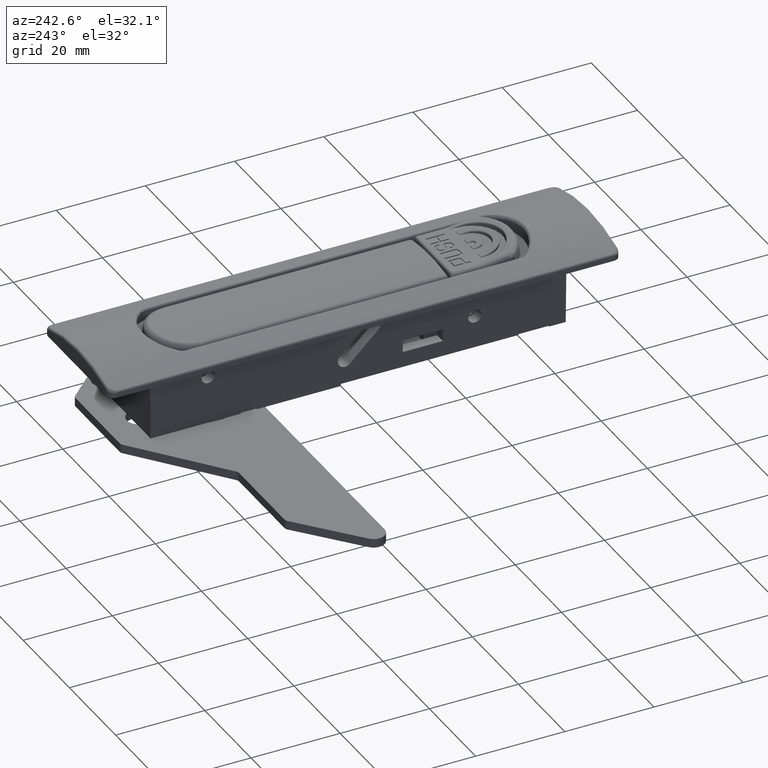
[diagram: clean part render]
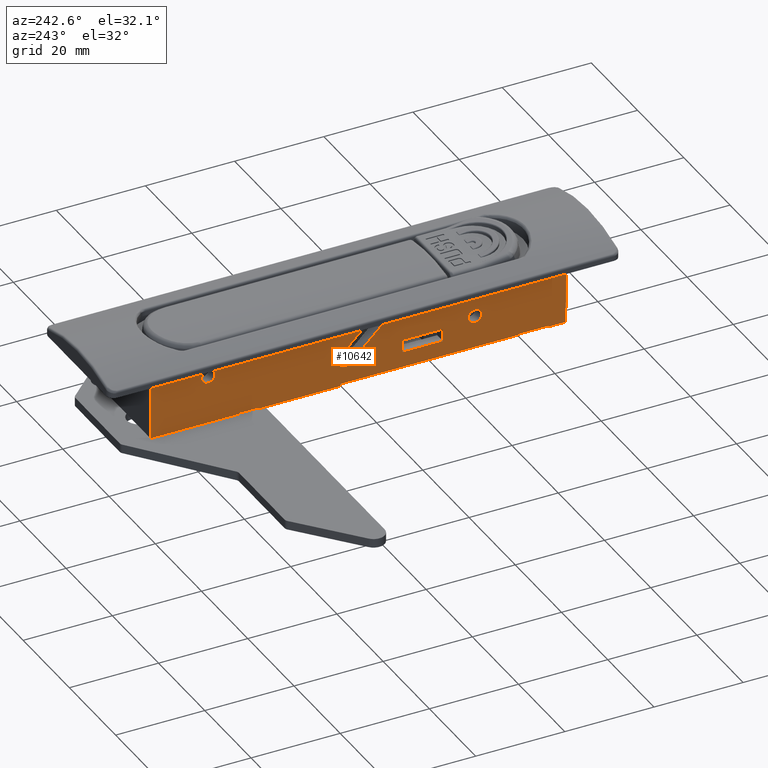
[diagram: same view with one face highlighted and labeled with its STEP entity id]
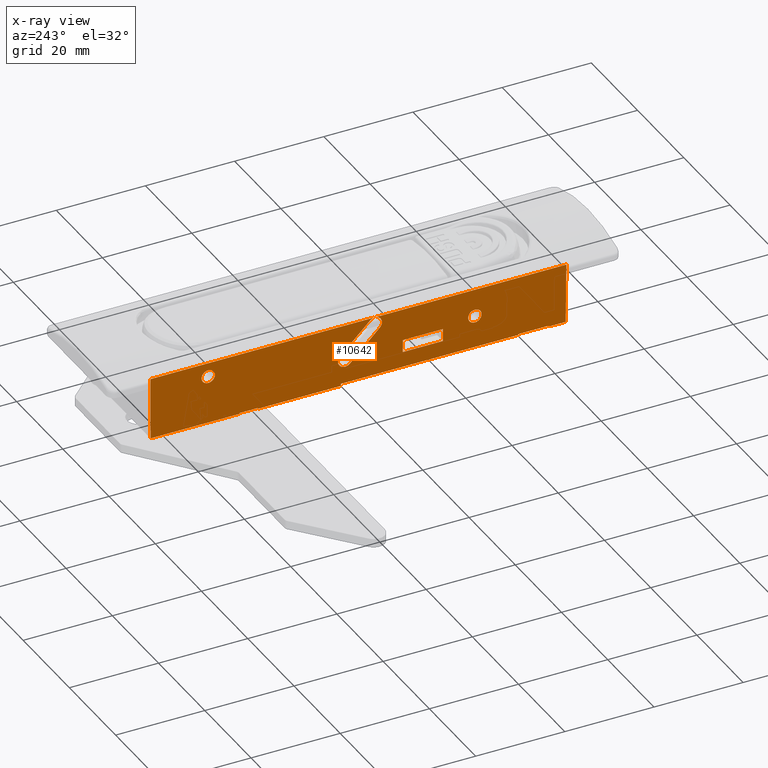
[diagram: x-ray of the same camera — body ghosted, the highlighted face saturated]
A machine part, auxiliary view. The second image highlights one B-rep face of the part: STEP entity #10642.
The next image is the same camera in x-ray: the body ghosted, the highlighted face saturated — about 0% of this face is hidden behind the body in this view.
In plain terms, the highlighted planar face has unit normal (-1, 0, -0.0071).
Its self-contained STEP definition (entity closure, byte-faithful):
#409=ELLIPSE('',#11368,0.200005101975738,0.199999999999997);
#410=ELLIPSE('',#11372,0.20000510197574,0.199999999999999);
#411=ELLIPSE('',#11376,0.20000510197574,0.199999999999999);
#412=ELLIPSE('',#11378,1.50003826481806,1.5);
#413=ELLIPSE('',#11382,1.60004081580508,1.59999999999915);
#414=ELLIPSE('',#11386,1.60004081580089,1.59999999999496);
#415=ELLIPSE('',#11398,1.50003826481806,1.5);
#416=ELLIPSE('',#11402,0.200005101975737,0.199999999999996);
#417=ELLIPSE('',#11405,350.008928457546,2.5);
#420=ELLIPSE('',#11410,350.008928457546,2.5);
#756=FACE_BOUND('',#1570,.T.);
#757=FACE_BOUND('',#1571,.T.);
#758=FACE_BOUND('',#1572,.T.);
#759=FACE_BOUND('',#1573,.T.);
#899=FACE_OUTER_BOUND('',#1569,.T.);
#1569=EDGE_LOOP('',(#7564,#7565,#7566,#7567,#7568,#7569,#7570,#7571,#7572,
#7573,#7574,#7575,#7576,#7577,#7578,#7579,#7580,#7581,#7582,#7583,#7584));
#1570=EDGE_LOOP('',(#7585));
#1571=EDGE_LOOP('',(#7586));
#1572=EDGE_LOOP('',(#7587,#7588,#7589,#7590));
#1573=EDGE_LOOP('',(#7591,#7592,#7593,#7594));
#2665=LINE('',#15634,#3521);
#2687=LINE('',#15722,#3543);
#2688=LINE('',#15730,#3544);
#2689=LINE('',#15732,#3545);
#2703=LINE('',#15830,#3559);
#2718=LINE('',#15868,#3574);
#2743=LINE('',#16033,#3599);
#2837=LINE('',#16916,#3693);
#2840=LINE('',#16929,#3696);
#2845=LINE('',#16942,#3701);
#2849=LINE('',#16954,#3705);
#2851=LINE('',#16969,#3707);
#2856=LINE('',#16983,#3712);
#2859=LINE('',#16993,#3715);
#2863=LINE('',#17001,#3719);
#2866=LINE('',#17007,#3722);
#2869=LINE('',#17012,#3725);
#2875=LINE('',#17046,#3731);
#2882=LINE('',#17062,#3738);
#2885=LINE('',#17066,#3741);
#2889=LINE('',#17072,#3745);
#3521=VECTOR('',#12406,39.594114768528);
#3543=VECTOR('',#12480,18.478777103522);
#3544=VECTOR('',#12487,4.0787771040174);
#3545=VECTOR('',#12490,15.8962962957966);
#3559=VECTOR('',#12550,14.0007412110565);
#3574=VECTOR('',#12575,13.5007147392056);
#3599=VECTOR('',#12626,67.8000000003736);
#3693=VECTOR('',#12888,4.14051311294211);
#3696=VECTOR('',#12899,0.0633476568084421);
#3701=VECTOR('',#12912,6.507461438189);
#3705=VECTOR('',#12924,0.0633476567013543);
#3707=VECTOR('',#12940,9.30011621326186);
#3712=VECTOR('',#12953,9.30011621329525);
#3715=VECTOR('',#12964,2.80007142764877);
#3719=VECTOR('',#12970,9.);
#3722=VECTOR('',#12975,2.80007142764877);
#3725=VECTOR('',#12980,9.);
#3731=VECTOR('',#13026,0.509914458612365);
#3738=VECTOR('',#13049,9.3499999996269);
#3741=VECTOR('',#13054,3.59411476860998);
#3745=VECTOR('',#13060,16.149999999988);
#4381=VERTEX_POINT('',#15631);
#4382=VERTEX_POINT('',#15633);
#4396=VERTEX_POINT('',#15668);
#4421=VERTEX_POINT('',#15719);
#4422=VERTEX_POINT('',#15721);
#4425=VERTEX_POINT('',#15727);
#4426=VERTEX_POINT('',#15729);
#4459=VERTEX_POINT('',#15829);
#4476=VERTEX_POINT('',#15865);
#4477=VERTEX_POINT('',#15867);
#4515=VERTEX_POINT('',#16030);
#4516=VERTEX_POINT('',#16032);
#4638=VERTEX_POINT('',#16914);
#4639=VERTEX_POINT('',#16915);
#4644=VERTEX_POINT('',#16926);
#4645=VERTEX_POINT('',#16928);
#4647=VERTEX_POINT('',#16934);
#4649=VERTEX_POINT('',#16940);
#4651=VERTEX_POINT('',#16946);
#4653=VERTEX_POINT('',#16952);
#4655=VERTEX_POINT('',#16958);
#4656=VERTEX_POINT('',#16962);
#4658=VERTEX_POINT('',#16967);
#4659=VERTEX_POINT('',#16968);
#4662=VERTEX_POINT('',#16976);
#4664=VERTEX_POINT('',#16982);
#4666=VERTEX_POINT('',#16991);
#4667=VERTEX_POINT('',#16992);
#4670=VERTEX_POINT('',#17000);
#4672=VERTEX_POINT('',#17006);
#4680=VERTEX_POINT('',#17029);
#5419=EDGE_CURVE('',#4381,#4382,#2665,.T.);
#5460=EDGE_CURVE('',#4421,#4422,#2687,.T.);
#5464=EDGE_CURVE('',#4425,#4426,#2688,.T.);
#5466=EDGE_CURVE('',#4426,#4396,#2689,.T.);
#5501=EDGE_CURVE('',#4396,#4459,#2703,.T.);
#5520=EDGE_CURVE('',#4476,#4477,#2718,.T.);
#5562=EDGE_CURVE('',#4515,#4516,#2743,.T.);
#5724=EDGE_CURVE('',#4638,#4639,#2837,.T.);
#5730=EDGE_CURVE('',#4644,#4645,#2840,.T.);
#5734=EDGE_CURVE('',#4647,#4644,#409,.T.);
#5737=EDGE_CURVE('',#4649,#4647,#2845,.T.);
#5740=EDGE_CURVE('',#4651,#4649,#410,.T.);
#5743=EDGE_CURVE('',#4653,#4651,#2849,.T.);
#5746=EDGE_CURVE('',#4655,#4653,#411,.T.);
#5747=EDGE_CURVE('',#4656,#4656,#412,.T.);
#5749=EDGE_CURVE('',#4658,#4659,#2851,.T.);
#5753=EDGE_CURVE('',#4662,#4658,#413,.T.);
#5756=EDGE_CURVE('',#4664,#4662,#2856,.T.);
#5759=EDGE_CURVE('',#4659,#4664,#414,.T.);
#5761=EDGE_CURVE('',#4666,#4667,#2859,.T.);
#5765=EDGE_CURVE('',#4670,#4666,#2863,.T.);
#5768=EDGE_CURVE('',#4672,#4670,#2866,.T.);
#5771=EDGE_CURVE('',#4667,#4672,#2869,.T.);
#5779=EDGE_CURVE('',#4680,#4680,#415,.T.);
#5782=EDGE_CURVE('',#4645,#4381,#416,.T.);
#5783=EDGE_CURVE('',#4425,#4639,#417,.T.);
#5786=EDGE_CURVE('',#4638,#4422,#420,.T.);
#5788=EDGE_CURVE('',#4382,#4421,#2875,.T.);
#5795=EDGE_CURVE('',#4459,#4515,#2882,.T.);
#5798=EDGE_CURVE('',#4477,#4655,#2885,.T.);
#5802=EDGE_CURVE('',#4516,#4476,#2889,.T.);
#7564=ORIENTED_EDGE('',*,*,#5464,.F.);
#7565=ORIENTED_EDGE('',*,*,#5783,.T.);
#7566=ORIENTED_EDGE('',*,*,#5724,.F.);
#7567=ORIENTED_EDGE('',*,*,#5786,.T.);
#7568=ORIENTED_EDGE('',*,*,#5460,.F.);
#7569=ORIENTED_EDGE('',*,*,#5788,.F.);
#7570=ORIENTED_EDGE('',*,*,#5419,.F.);
#7571=ORIENTED_EDGE('',*,*,#5782,.F.);
#7572=ORIENTED_EDGE('',*,*,#5730,.F.);
#7573=ORIENTED_EDGE('',*,*,#5734,.F.);
#7574=ORIENTED_EDGE('',*,*,#5737,.F.);
#7575=ORIENTED_EDGE('',*,*,#5740,.F.);
#7576=ORIENTED_EDGE('',*,*,#5743,.F.);
#7577=ORIENTED_EDGE('',*,*,#5746,.F.);
#7578=ORIENTED_EDGE('',*,*,#5798,.F.);
#7579=ORIENTED_EDGE('',*,*,#5520,.F.);
#7580=ORIENTED_EDGE('',*,*,#5802,.F.);
#7581=ORIENTED_EDGE('',*,*,#5562,.F.);
#7582=ORIENTED_EDGE('',*,*,#5795,.F.);
#7583=ORIENTED_EDGE('',*,*,#5501,.F.);
#7584=ORIENTED_EDGE('',*,*,#5466,.F.);
#7585=ORIENTED_EDGE('',*,*,#5779,.T.);
#7586=ORIENTED_EDGE('',*,*,#5747,.T.);
#7587=ORIENTED_EDGE('',*,*,#5768,.F.);
#7588=ORIENTED_EDGE('',*,*,#5771,.F.);
#7589=ORIENTED_EDGE('',*,*,#5761,.F.);
#7590=ORIENTED_EDGE('',*,*,#5765,.F.);
#7591=ORIENTED_EDGE('',*,*,#5756,.F.);
#7592=ORIENTED_EDGE('',*,*,#5759,.F.);
#7593=ORIENTED_EDGE('',*,*,#5749,.F.);
#7594=ORIENTED_EDGE('',*,*,#5753,.F.);
#10340=PLANE('',#11429);
#10642=ADVANCED_FACE('',(#899,#756,#757,#758,#759),#10340,.T.);
#11368=AXIS2_PLACEMENT_3D('',#16936,#12906,#12907);
#11372=AXIS2_PLACEMENT_3D('',#16948,#12918,#12919);
#11376=AXIS2_PLACEMENT_3D('',#16960,#12930,#12931);
#11378=AXIS2_PLACEMENT_3D('',#16963,#12934,#12935);
#11382=AXIS2_PLACEMENT_3D('',#16977,#12946,#12947);
#11386=AXIS2_PLACEMENT_3D('',#16988,#12958,#12959);
#11398=AXIS2_PLACEMENT_3D('',#17030,#12997,#12998);
#11402=AXIS2_PLACEMENT_3D('',#17035,#13005,#13006);
#11405=AXIS2_PLACEMENT_3D('',#17038,#13011,#13012);
#11410=AXIS2_PLACEMENT_3D('',#17043,#13021,#13022);
#11429=AXIS2_PLACEMENT_3D('',#17104,#13083,#13084);
#12406=DIRECTION('',(-1.,-3.42438620847252E-15,7.33149516060258E-13));
#12480=DIRECTION('',(-1.,1.81239604910076E-15,0.));
#12487=DIRECTION('',(-1.,1.81239604910076E-15,0.));
#12490=DIRECTION('',(-1.,1.81239604910076E-15,0.));
#12550=DIRECTION('',(-0.00740701525290121,-0.00714247899398618,0.999947059158065));
#12575=DIRECTION('',(-0.00740701525345462,0.00714247899398617,-0.999947059158061));
#12626=DIRECTION('',(1.,0.,-2.53735446874106E-13));
#12888=DIRECTION('',(-1.,-3.42438620847252E-15,7.33149516060258E-13));
#12899=DIRECTION('',(-0.623769735206252,0.00558277302030484,-0.781588222842519));
#12906=DIRECTION('center_axis',(-1.81234981627677E-15,-0.999974490772033,
-0.00714267493408596));
#12907=DIRECTION('ref_axis',(2.53728974278748E-13,-0.00714267493408596,
0.999974490772033));
#12912=DIRECTION('',(-1.,-3.01346572970543E-14,4.4725874684617E-12));
#12918=DIRECTION('center_axis',(-1.81234981627677E-15,-0.999974490772033,
-0.00714267493408596));
#12919=DIRECTION('ref_axis',(2.53728974278748E-13,-0.00714267493408596,
0.999974490772033));
#12924=DIRECTION('',(-0.623769735316881,-0.00558277301967196,0.781588222754232));
#12930=DIRECTION('center_axis',(1.81234981627677E-15,0.999974490772033,
0.00714267493408596));
#12931=DIRECTION('ref_axis',(2.53728974278748E-13,-0.00714267493408596,
0.999974490772033));
#12934=DIRECTION('center_axis',(1.81234981627677E-15,0.999974490772033,
0.00714267493408596));
#12935=DIRECTION('ref_axis',(2.53728974278748E-13,-0.00714267493408596,
0.999974490772033));
#12940=DIRECTION('',(-0.714240136486619,0.00499916337795202,-0.699882872913102));
#12946=DIRECTION('center_axis',(-1.81234981627677E-15,-0.999974490772033,
-0.00714267493408596));
#12947=DIRECTION('ref_axis',(-2.53728974278748E-13,0.00714267493408596,
-0.999974490772033));
#12953=DIRECTION('',(0.714240136491249,-0.00499916337791827,0.699882872908377));
#12958=DIRECTION('center_axis',(-1.81234981627677E-15,-0.999974490772033,
-0.00714267493408596));
#12959=DIRECTION('ref_axis',(-2.53728974278748E-13,0.00714267493408596,
-0.999974490772033));
#12964=DIRECTION('',(6.84227765783602E-49,0.00714267493408595,-0.999974490772033));
#12970=DIRECTION('',(-1.,1.81239604910076E-15,0.));
#12975=DIRECTION('',(-6.84227765783602E-49,-0.00714267493408595,0.999974490772033));
#12980=DIRECTION('',(1.,-1.81239604910076E-15,0.));
#12997=DIRECTION('center_axis',(1.81234981627677E-15,0.999974490772033,
0.00714267493408596));
#12998=DIRECTION('ref_axis',(2.53728974278748E-13,-0.00714267493408596,
0.999974490772033));
#13005=DIRECTION('center_axis',(1.81234981627677E-15,0.999974490772033,
0.00714267493408596));
#13006=DIRECTION('ref_axis',(2.53728974278748E-13,-0.00714267493408596,
0.999974490772033));
#13011=DIRECTION('center_axis',(1.81234981627677E-15,0.999974490772033,
0.00714267493408596));
#13012=DIRECTION('ref_axis',(-1.29453558305484E-17,-0.00714267493408596,
0.999974490772033));
#13021=DIRECTION('center_axis',(1.81234981627677E-15,0.999974490772033,
0.00714267493408596));
#13022=DIRECTION('ref_axis',(-1.29453558305484E-17,-0.00714267493408596,
0.999974490772033));
#13026=DIRECTION('',(-0.196111324774182,0.00700397588479259,-0.980556623870912));
#13049=DIRECTION('',(1.,0.,-2.53735446874106E-13));
#13054=DIRECTION('',(-1.,1.81239604910076E-15,0.));
#13060=DIRECTION('',(1.,0.,-2.53735446874106E-13));
#13083=DIRECTION('center_axis',(-1.81234981627677E-15,-0.999974490772033,
-0.00714267493408595));
#13084=DIRECTION('ref_axis',(0.,-0.00714267493408727,0.999974490772033));
#15631=CARTESIAN_POINT('',(132.689989155261,42.1015524612415,-17.5));
#15633=CARTESIAN_POINT('',(93.095874386733,42.1015524612414,-17.4999999999826));
#15634=CARTESIAN_POINT('',(132.689989155262,42.1015524612415,-17.5000000000117));
#15668=CARTESIAN_POINT('',(50.3995780904527,42.1051238898129,-17.9999999999825));
#15719=CARTESIAN_POINT('',(92.995874386733,42.1051238898129,-17.9999999999825));
#15721=CARTESIAN_POINT('',(74.517097283211,42.1051238898129,-17.9999999999825));
#15722=CARTESIAN_POINT('',(92.9958743867329,42.1051238898129,-17.9999999999825));
#15727=CARTESIAN_POINT('',(70.3746514902667,42.1051238898129,-17.9999999999825));
#15729=CARTESIAN_POINT('',(66.2958743862493,42.1051238902376,-17.9999999999825));
#15730=CARTESIAN_POINT('',(92.9958743867329,42.1051238898129,-17.9999999999825));
#15732=CARTESIAN_POINT('',(92.9958743867329,42.1051238898129,-17.9999999999825));
#15829=CARTESIAN_POINT('',(50.2958743867505,42.0051238898125,-3.99999999995345));
#15830=CARTESIAN_POINT('',(50.4036623140585,42.10906224829,-18.5513701867711));
#15865=CARTESIAN_POINT('',(143.595874386739,42.0051238898125,-3.99999999995282));
#15867=CARTESIAN_POINT('',(143.495874386733,42.1015524612411,-17.4999999999534));
#15868=CARTESIAN_POINT('',(143.591784872688,42.0090673497902,-4.55208439682852));
#16030=CARTESIAN_POINT('',(59.6458743863774,42.0051238898125,-3.99999999992943));
#16032=CARTESIAN_POINT('',(127.445874386751,42.0051238898125,-3.99999999994868));
#16033=CARTESIAN_POINT('',(96.9458743866602,42.0051238898125,-3.99999999993889));
#16914=CARTESIAN_POINT('',(74.5161309432097,42.1036953183842,-17.799999999969));
#16915=CARTESIAN_POINT('',(70.3756178302676,42.1036953183842,-17.799999999966));
#16916=CARTESIAN_POINT('',(96.94587438665,42.1036953183843,-17.7999999999854));
#16926=CARTESIAN_POINT('',(132.885823587005,42.1006613477324,-17.3752441087323));
#16928=CARTESIAN_POINT('',(132.846309235892,42.1010150033217,-17.4247558912387));
#16929=CARTESIAN_POINT('',(132.616969480489,42.1030676065929,-17.7121203492035));
#16934=CARTESIAN_POINT('',(133.042143667627,42.1001238898125,-17.2999999999418));
#16936=CARTESIAN_POINT('Origin',(133.042143667627,42.1015524612411,-17.4999999999534));
#16940=CARTESIAN_POINT('',(139.549605105816,42.1001238898127,-17.2999999999825));
#16942=CARTESIAN_POINT('',(139.549605105818,42.1001238898127,-17.2999999999709));
#16946=CARTESIAN_POINT('',(139.705925186442,42.1006613477326,-17.375244108768));
#16948=CARTESIAN_POINT('Origin',(139.549605105816,42.1015524612413,-17.4999999999825));
#16952=CARTESIAN_POINT('',(139.74543953751,42.1010150033213,-17.4247558911733));
#16954=CARTESIAN_POINT('',(140.014292412467,42.1034212511587,-17.7616305884226));
#16958=CARTESIAN_POINT('',(139.901759618123,42.1015524612411,-17.4999999999534));
#16960=CARTESIAN_POINT('Origin',(139.901759618123,42.1001238898125,-17.2999999999418));
#16962=CARTESIAN_POINT('',(123.095874386768,42.0601238898131,-11.7000000000233));
#16963=CARTESIAN_POINT('Origin',(123.095874386768,42.0494096040988,-10.2000000000233));
#16967=CARTESIAN_POINT('',(99.5155565128884,42.0084868293385,-4.47081153357333));
#16968=CARTESIAN_POINT('',(92.8730402394006,42.0549796297226,-10.9798035873508));
#16969=CARTESIAN_POINT('',(98.4400248801352,42.0160147713789,-5.52472341923502));
#16976=CARTESIAN_POINT('',(101.755209692711,42.0248125221768,-6.75640853093938));
#16977=CARTESIAN_POINT('Origin',(100.635383102797,42.0166496757575,-5.61361003222993));
#16982=CARTESIAN_POINT('',(95.1126934191427,42.0713053225607,-13.2654005846824));
#16983=CARTESIAN_POINT('',(100.679736352481,42.0323400562115,-7.81026329580084));
#16988=CARTESIAN_POINT('Origin',(93.9928668292862,42.0631424761418,-12.1226020860311));
#16991=CARTESIAN_POINT('',(106.945874386745,42.0565524612417,-11.2000000000233));
#16992=CARTESIAN_POINT('',(106.945874386745,42.0765524612416,-14.0000000000117));
#16993=CARTESIAN_POINT('',(106.945874386745,42.0051238898125,-3.99999999993889));
#17000=CARTESIAN_POINT('',(115.945874386745,42.0565524612417,-11.2000000000233));
#17001=CARTESIAN_POINT('',(96.9458743866602,42.0565524612417,-11.2000000000233));
#17006=CARTESIAN_POINT('',(115.945874386745,42.0765524612416,-14.0000000000117));
#17007=CARTESIAN_POINT('',(115.945874386745,42.0051238898125,-3.99999999993889));
#17012=CARTESIAN_POINT('',(96.9458743866602,42.0765524612416,-14.0000000000117));
#17029=CARTESIAN_POINT('',(63.2958743867505,42.0383381755272,-8.64999999997673));
#17030=CARTESIAN_POINT('Origin',(63.2958743867505,42.0276238898129,-7.14999999997673));
#17035=CARTESIAN_POINT('Origin',(132.689989155261,42.1001238898129,-17.3));
#17038=CARTESIAN_POINT('Origin',(72.4458743867388,43.5051366444439,-214.001785648326));
#17043=CARTESIAN_POINT('Origin',(72.4458743867388,43.5051366444439,-214.001785648326));
#17046=CARTESIAN_POINT('',(92.980765237849,42.105663502273,-18.0755457444025));
#17062=CARTESIAN_POINT('',(96.9458743866602,42.0051238898125,-3.99999999993889));
#17066=CARTESIAN_POINT('',(143.495874386733,42.1015524612411,-17.4999999999534));
#17072=CARTESIAN_POINT('',(96.9458743866602,42.0051238898125,-3.99999999993889));
#17104=CARTESIAN_POINT('Origin',(96.9458743866602,42.0051238898125,-3.99999999993889));